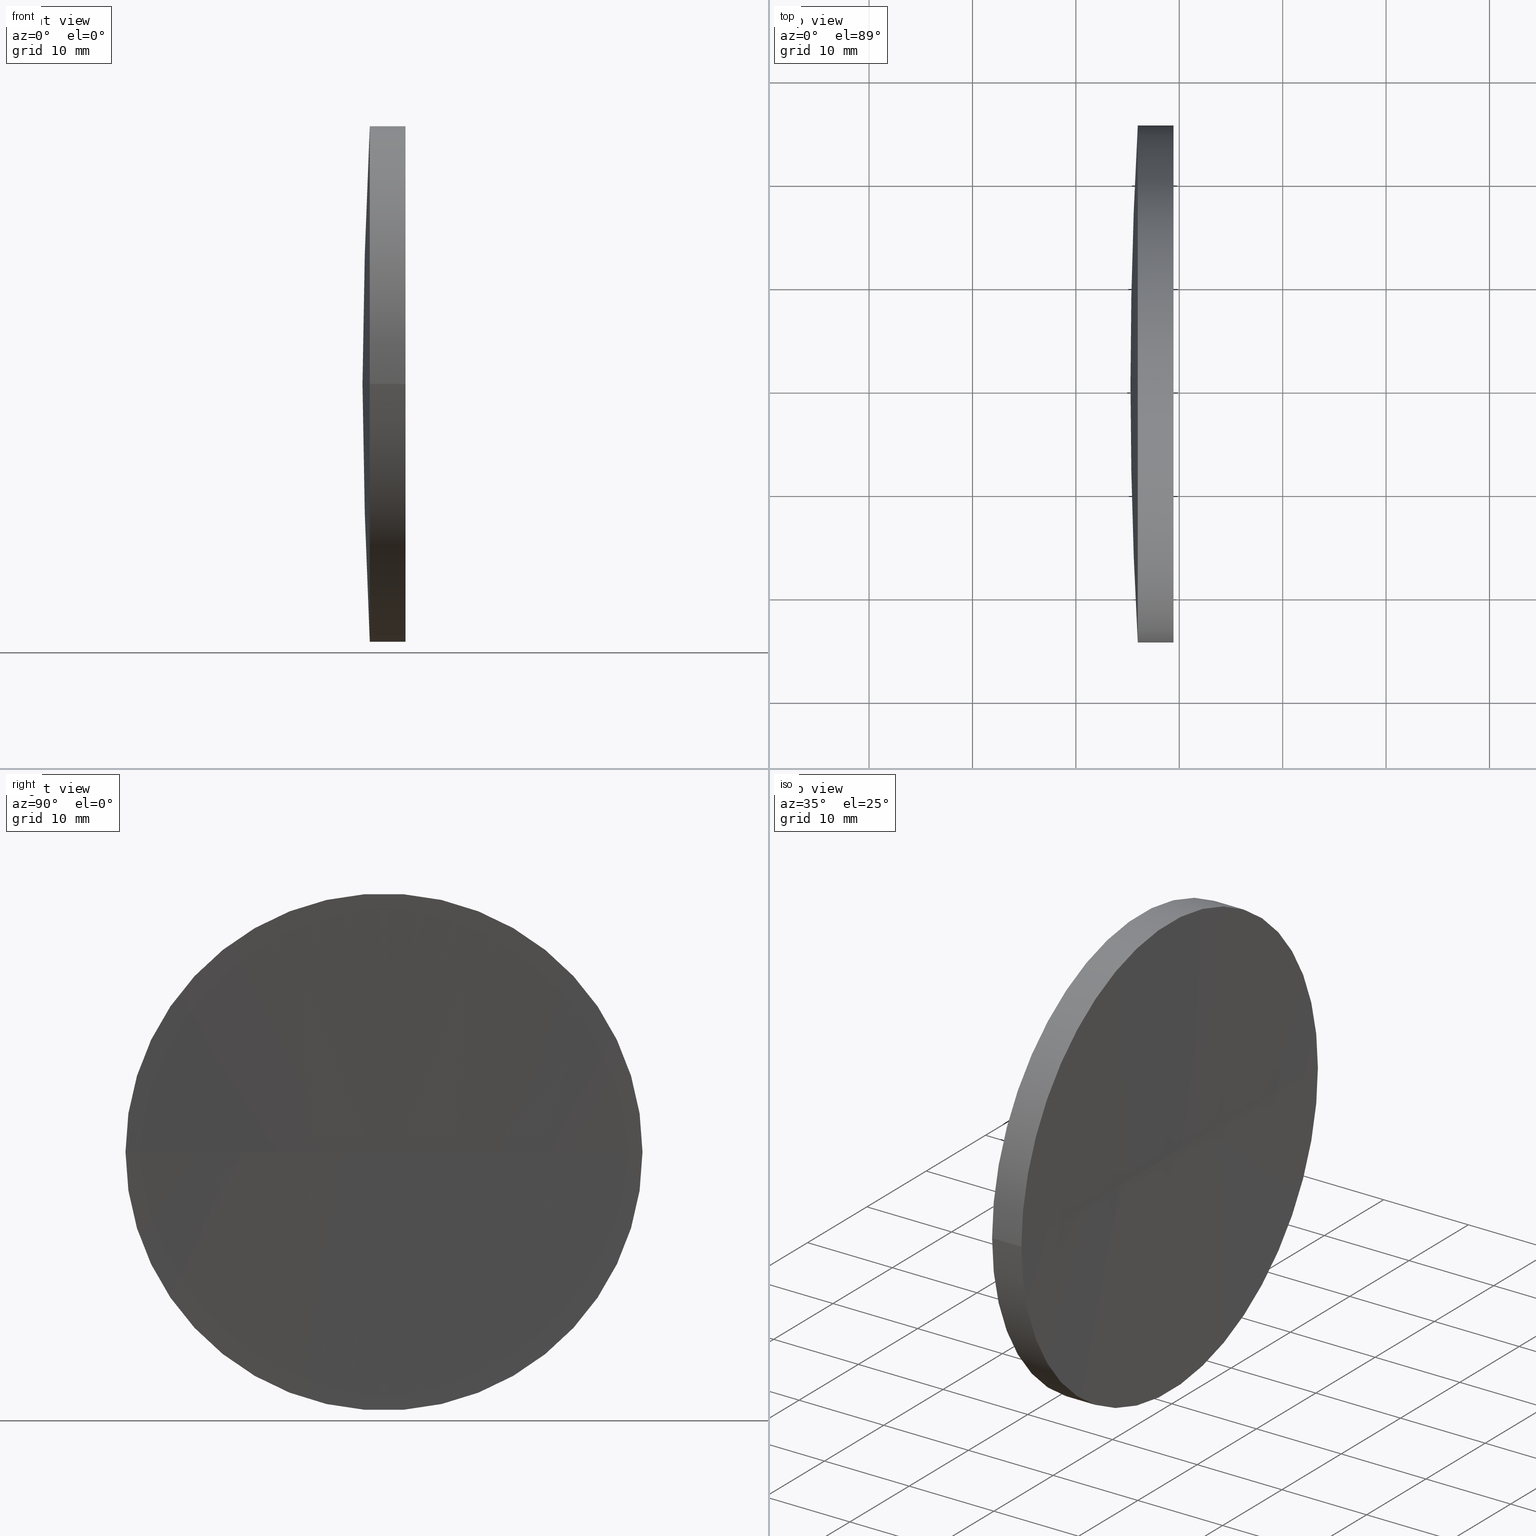
[diagram: canonical four-view strip — front | top / right | iso, engineering-drawing reading convention]
A machine part, canonical four-view strip (front | top / right | iso — engineering-drawing reading convention). The complete STEP part file that produces these views, byte-faithful:
ISO-10303-21;
HEADER;
FILE_DESCRIPTION (( 'STEP AP214' ),
    '1' );
FILE_NAME ('150024.STEP',
    '2019-07-05T02:07:49',
    ( '' ),
    ( '' ),
    'SwSTEP 2.0',
    'SolidWorks 2016',
    '' );
FILE_SCHEMA (( 'AUTOMOTIVE_DESIGN' ));
ENDSEC;

DATA;
#1 = DIRECTION ( 'NONE',  ( -1.000000000000000000, -6.937607244762875000E-016, -0.0000000000000000000 ) ) ;
#2 = PRODUCT_RELATED_PRODUCT_CATEGORY ( 'part', '', ( #140 ) ) ;
#3 = STYLED_ITEM ( 'NONE', ( #26 ), #61 ) ;
#4 =( NAMED_UNIT ( * ) SI_UNIT ( $, .STERADIAN. ) SOLID_ANGLE_UNIT ( ) );
#5 = AXIS2_PLACEMENT_3D ( 'NONE', #11, #85, #116 ) ;
#6 = UNCERTAINTY_MEASURE_WITH_UNIT (LENGTH_MEASURE( 1.000000000000000100E-005 ), #135, 'distance_accuracy_value', 'NONE');
#7 = ADVANCED_FACE ( 'NONE', ( #70 ), #187, .T. ) ;
#8 = CARTESIAN_POINT ( 'NONE',  ( 231.8889825959263400, 130.4336809418806500, 0.0000000000000000000 ) ) ;
#9 = PRODUCT_DEFINITION_CONTEXT ( 'detailed design', #65, 'design' ) ;
#10 = DIRECTION ( 'NONE',  ( -1.000000000000000000, -6.937607244762875000E-016, -0.0000000000000000000 ) ) ;
#11 = CARTESIAN_POINT ( 'NONE',  ( 688.7821311214902400, 130.4336809418806500, 0.0000000000000000000 ) ) ;
#12 = UNCERTAINTY_MEASURE_WITH_UNIT (LENGTH_MEASURE( 1.000000000000000100E-005 ), #146, 'distance_accuracy_value', 'NONE');
#13 = AXIS2_PLACEMENT_3D ( 'NONE', #8, #28, #136 ) ;
#14 = CARTESIAN_POINT ( 'NONE',  ( 688.7821311214902400, 130.4336809418806500, 0.0000000000000000000 ) ) ;
#15 = DIRECTION ( 'NONE',  ( 1.000000000000000000, 0.0000000000000000000, 0.0000000000000000000 ) ) ;
#16 = FACE_OUTER_BOUND ( 'NONE', #111, .T. ) ;
#17 = APPLICATION_CONTEXT ( 'automotive_design' ) ;
#18 = ORIENTED_EDGE ( 'NONE', *, *, #54, .T. ) ;
#19 = SHAPE_DEFINITION_REPRESENTATION ( #121, #27 ) ;
#20 = ORIENTED_EDGE ( 'NONE', *, *, #87, .F. ) ;
#21 =( GEOMETRIC_REPRESENTATION_CONTEXT ( 3 ) GLOBAL_UNCERTAINTY_ASSIGNED_CONTEXT ( ( #12 ) ) GLOBAL_UNIT_ASSIGNED_CONTEXT ( ( #146, #138, #89 ) ) REPRESENTATION_CONTEXT ( 'NONE', 'WORKASPACE' ) );
#22 = AXIS2_PLACEMENT_3D ( 'NONE', #110, #43, #41 ) ;
#23 = EDGE_CURVE ( 'NONE', #80, #93, #188, .T. ) ;
#24 = ORIENTED_EDGE ( 'NONE', *, *, #97, .T. ) ;
#25 = PRESENTATION_LAYER_ASSIGNMENT (  '', '', ( #152 ) ) ;
#26 = PRESENTATION_STYLE_ASSIGNMENT (( #177 ) ) ;
#27 = ADVANCED_BREP_SHAPE_REPRESENTATION ( '150024', ( #61, #139 ), #56 ) ;
#28 = DIRECTION ( 'NONE',  ( -1.000000000000000000, -6.937607244762875000E-016, -0.0000000000000000000 ) ) ;
#29 = UNCERTAINTY_MEASURE_WITH_UNIT (LENGTH_MEASURE( 1.000000000000000100E-005 ), #52, 'distance_accuracy_value', 'NONE');
#30 = CARTESIAN_POINT ( 'NONE',  ( 231.8889825959263400, 130.4336809418806500, 0.0000000000000000000 ) ) ;
#31 = ORIENTED_EDGE ( 'NONE', *, *, #125, .F. ) ;
#32 = CARTESIAN_POINT ( 'NONE',  ( 688.7821311214902400, 130.4336809418806500, 0.0000000000000000000 ) ) ;
#33 = EDGE_LOOP ( 'NONE', ( #24, #64, #192, #179 ) ) ;
#34 = FILL_AREA_STYLE_COLOUR ( '', #120 ) ;
#35 = AXIS2_PLACEMENT_3D ( 'NONE', #98, #46, #154 ) ;
#36 = DIRECTION ( 'NONE',  ( -7.401486830834377300E-016, 1.000000000000000000, 0.0000000000000000000 ) ) ;
#37 = COLOUR_RGB ( '',1.000000000000000000, 1.000000000000000000, 1.000000000000000000 ) ;
#38 = CARTESIAN_POINT ( 'NONE',  ( 249.1821311214903600, 130.4336809418746600, 0.0000000000000000000 ) ) ;
#39 = PRODUCT_DEFINITION_FORMATION_WITH_SPECIFIED_SOURCE ( '�κ�', '', #140, .NOT_KNOWN. ) ;
#40 = MECHANICAL_DESIGN_GEOMETRIC_PRESENTATION_REPRESENTATION (  '', ( #3 ), #45 ) ;
#41 = DIRECTION ( 'NONE',  ( -7.509964089910868700E-016, 1.000000000000000000, 0.0000000000000000000 ) ) ;
#42 = ORIENTED_EDGE ( 'NONE', *, *, #114, .F. ) ;
#43 = DIRECTION ( 'NONE',  ( -0.0000000000000000000, 0.0000000000000000000, -1.000000000000000000 ) ) ;
#44 = MECHANICAL_DESIGN_GEOMETRIC_PRESENTATION_REPRESENTATION (  '', ( #152 ), #21 ) ;
#45 =( GEOMETRIC_REPRESENTATION_CONTEXT ( 3 ) GLOBAL_UNCERTAINTY_ASSIGNED_CONTEXT ( ( #6 ) ) GLOBAL_UNIT_ASSIGNED_CONTEXT ( ( #135, #48, #84 ) ) REPRESENTATION_CONTEXT ( 'NONE', 'WORKASPACE' ) );
#46 = DIRECTION ( 'NONE',  ( -8.496118506040342700E-032, 1.224646799147353200E-016, -1.000000000000000000 ) ) ;
#47 = FACE_OUTER_BOUND ( 'NONE', #33, .T. ) ;
#48 =( NAMED_UNIT ( * ) PLANE_ANGLE_UNIT ( ) SI_UNIT ( $, .RADIAN. ) );
#49 = DIRECTION ( 'NONE',  ( 1.110223024625153800E-015, -1.000000000000000000, 0.0000000000000000000 ) ) ;
#50 = AXIS2_PLACEMENT_3D ( 'NONE', #189, #95, #74 ) ;
#51 = ORIENTED_EDGE ( 'NONE', *, *, #87, .T. ) ;
#52 =( LENGTH_UNIT ( ) NAMED_UNIT ( * ) SI_UNIT ( .MILLI., .METRE. ) );
#53 = DIRECTION ( 'NONE',  ( -1.000000000000000000, -6.937607244762875000E-016, -0.0000000000000000000 ) ) ;
#54 = EDGE_CURVE ( 'NONE', #149, #137, #159, .T. ) ;
#55 = EDGE_LOOP ( 'NONE', ( #42, #162, #173, #20 ) ) ;
#56 =( GEOMETRIC_REPRESENTATION_CONTEXT ( 3 ) GLOBAL_UNCERTAINTY_ASSIGNED_CONTEXT ( ( #29 ) ) GLOBAL_UNIT_ASSIGNED_CONTEXT ( ( #52, #106, #4 ) ) REPRESENTATION_CONTEXT ( 'NONE', 'WORKASPACE' ) );
#57 = CARTESIAN_POINT ( 'NONE',  ( 245.2821311214903200, 130.4336809418803700, 0.0000000000000000000 ) ) ;
#58 = CARTESIAN_POINT ( 'NONE',  ( 231.8889825959263600, 105.4336809418806400, 0.0000000000000000000 ) ) ;
#59 = ORIENTED_EDGE ( 'NONE', *, *, #109, .F. ) ;
#60 = SURFACE_SIDE_STYLE ('',( #151 ) ) ;
#61 = MANIFOLD_SOLID_BREP ( '��ת1', #77 ) ;
#62 = CIRCLE ( 'NONE', #83, 24.99999999999992500 ) ;
#63 = SURFACE_STYLE_USAGE ( .BOTH. , #185 ) ;
#64 = ORIENTED_EDGE ( 'NONE', *, *, #114, .T. ) ;
#65 = APPLICATION_CONTEXT ( 'automotive_design' ) ;
#66 = ORIENTED_EDGE ( 'NONE', *, *, #109, .T. ) ;
#67 = AXIS2_PLACEMENT_3D ( 'NONE', #14, #118, #142 ) ;
#68 = CARTESIAN_POINT ( 'NONE',  ( 245.9873140786527900, 130.4336809418806500, 0.0000000000000000000 ) ) ;
#69 = ORIENTED_EDGE ( 'NONE', *, *, #23, .F. ) ;
#70 = FACE_OUTER_BOUND ( 'NONE', #104, .T. ) ;
#71 = ADVANCED_FACE ( 'NONE', ( #155 ), #134, .F. ) ;
#72 = DIRECTION ( 'NONE',  ( -8.496118506040342700E-032, 1.224646799147353200E-016, -1.000000000000000000 ) ) ;
#73 = CYLINDRICAL_SURFACE ( 'NONE', #13, 25.00000000000000700 ) ;
#74 = DIRECTION ( 'NONE',  ( 1.110223024625153800E-015, -1.000000000000000000, 0.0000000000000000000 ) ) ;
#75 = CARTESIAN_POINT ( 'NONE',  ( 1449.182131121490300, 130.4336809418753900, 0.0000000000000000000 ) ) ;
#76 = DIRECTION ( 'NONE',  ( -1.000000000000000000, -6.937607244762875000E-016, -0.0000000000000000000 ) ) ;
#77 = CLOSED_SHELL ( 'NONE', ( #7, #94, #153, #71, #130, #174 ) ) ;
#78 = PRODUCT_CONTEXT ( 'NONE', #17, 'mechanical' ) ;
#79 = APPLICATION_PROTOCOL_DEFINITION ( 'draft international standard', 'automotive_design', 1998, #65 ) ;
#80 = VERTEX_POINT ( 'NONE', #133 ) ;
#81 = PRESENTATION_STYLE_ASSIGNMENT (( #63 ) ) ;
#82 = EDGE_CURVE ( 'NONE', #186, #149, #148, .T. ) ;
#83 = AXIS2_PLACEMENT_3D ( 'NONE', #68, #53, #145 ) ;
#84 =( NAMED_UNIT ( * ) SI_UNIT ( $, .STERADIAN. ) SOLID_ANGLE_UNIT ( ) );
#85 = DIRECTION ( 'NONE',  ( -0.0000000000000000000, 0.0000000000000000000, 1.000000000000000000 ) ) ;
#86 = CARTESIAN_POINT ( 'NONE',  ( 0.0000000000000000000, 0.0000000000000000000, 0.0000000000000000000 ) ) ;
#87 = EDGE_CURVE ( 'NONE', #183, #80, #190, .T. ) ;
#88 = ORIENTED_EDGE ( 'NONE', *, *, #125, .T. ) ;
#89 =( NAMED_UNIT ( * ) SI_UNIT ( $, .STERADIAN. ) SOLID_ANGLE_UNIT ( ) );
#90 = SURFACE_STYLE_FILL_AREA ( #126 ) ;
#91 = CARTESIAN_POINT ( 'NONE',  ( 245.9873140786527600, 155.4336809418806000, 3.061616997868379500E-015 ) ) ;
#92 = FACE_OUTER_BOUND ( 'NONE', #150, .T. ) ;
#93 = VERTEX_POINT ( 'NONE', #57 ) ;
#94 = ADVANCED_FACE ( 'NONE', ( #47 ), #73, .T. ) ;
#95 = DIRECTION ( 'NONE',  ( -1.000000000000000000, -6.937607244762875000E-016, -0.0000000000000000000 ) ) ;
#96 = SPHERICAL_SURFACE ( 'NONE', #67, 443.4999999999998900 ) ;
#97 = EDGE_CURVE ( 'NONE', #149, #186, #101, .T. ) ;
#98 = CARTESIAN_POINT ( 'NONE',  ( 1449.182131121490300, 130.4336809418753900, 0.0000000000000000000 ) ) ;
#99 = EDGE_LOOP ( 'NONE', ( #144, #105, #88 ) ) ;
#100 = AXIS2_PLACEMENT_3D ( 'NONE', #115, #191, #168 ) ;
#101 = CIRCLE ( 'NONE', #50, 25.00000000000006400 ) ;
#102 = APPLICATION_PROTOCOL_DEFINITION ( 'draft international standard', 'automotive_design', 1998, #17 ) ;
#103 = CARTESIAN_POINT ( 'NONE',  ( 1449.182131121490300, 130.4336809418753900, 0.0000000000000000000 ) ) ;
#104 = EDGE_LOOP ( 'NONE', ( #51, #119, #59 ) ) ;
#105 = ORIENTED_EDGE ( 'NONE', *, *, #82, .F. ) ;
#106 =( NAMED_UNIT ( * ) PLANE_ANGLE_UNIT ( ) SI_UNIT ( $, .RADIAN. ) );
#107 = VECTOR ( 'NONE', #10, 1000.000000000000000 ) ;
#108 = ORIENTED_EDGE ( 'NONE', *, *, #176, .T. ) ;
#109 = EDGE_CURVE ( 'NONE', #183, #93, #184, .T. ) ;
#110 = CARTESIAN_POINT ( 'NONE',  ( 688.7821311214902400, 130.4336809418806500, 0.0000000000000000000 ) ) ;
#111 = EDGE_LOOP ( 'NONE', ( #69, #108, #66 ) ) ;
#112 = PRESENTATION_LAYER_ASSIGNMENT (  '', '', ( #3 ) ) ;
#113 = DIRECTION ( 'NONE',  ( -1.000000000000000000, -6.937607244762875000E-016, -0.0000000000000000000 ) ) ;
#114 = EDGE_CURVE ( 'NONE', #186, #183, #129, .T. ) ;
#115 = CARTESIAN_POINT ( 'NONE',  ( 245.9873140786527900, 130.4336809418806500, 0.0000000000000000000 ) ) ;
#116 = DIRECTION ( 'NONE',  ( 1.000000000000000000, 0.0000000000000000000, 0.0000000000000000000 ) ) ;
#117 = FILL_AREA_STYLE ('',( #158 ) ) ;
#118 = DIRECTION ( 'NONE',  ( -0.0000000000000000000, 0.0000000000000000000, -1.000000000000000000 ) ) ;
#119 = ORIENTED_EDGE ( 'NONE', *, *, #23, .T. ) ;
#120 = COLOUR_RGB ( '',1.000000000000000000, 1.000000000000000000, 1.000000000000000000 ) ;
#121 = PRODUCT_DEFINITION_SHAPE ( 'NONE', 'NONE',  #157 ) ;
#122 = CYLINDRICAL_SURFACE ( 'NONE', #143, 25.00000000000000700 ) ;
#123 = EDGE_CURVE ( 'NONE', #149, #80, #161, .T. ) ;
#124 = CARTESIAN_POINT ( 'NONE',  ( 249.4425760513079200, 155.4336809418852900, 0.0000000000000000000 ) ) ;
#125 = EDGE_CURVE ( 'NONE', #186, #137, #178, .T. ) ;
#126 = FILL_AREA_STYLE ('',( #34 ) ) ;
#127 = CARTESIAN_POINT ( 'NONE',  ( 1449.182131121490300, 130.4336809418753900, 0.0000000000000000000 ) ) ;
#128 = AXIS2_PLACEMENT_3D ( 'NONE', #167, #113, #49 ) ;
#129 = LINE ( 'NONE', #131, #107 ) ;
#130 = ADVANCED_FACE ( 'NONE', ( #172 ), #122, .T. ) ;
#131 = CARTESIAN_POINT ( 'NONE',  ( 231.8889825959263100, 155.4336809418806500, 3.061616997868383800E-015 ) ) ;
#132 = AXIS2_PLACEMENT_3D ( 'NONE', #32, #72, #181 ) ;
#133 = CARTESIAN_POINT ( 'NONE',  ( 245.9873140786528200, 105.4336809418807200, 0.0000000000000000000 ) ) ;
#134 = SPHERICAL_SURFACE ( 'NONE', #147, 1200.000000000000000 ) ;
#135 =( LENGTH_UNIT ( ) NAMED_UNIT ( * ) SI_UNIT ( .MILLI., .METRE. ) );
#136 = DIRECTION ( 'NONE',  ( 1.110223024625156100E-015, -1.000000000000000000, 0.0000000000000000000 ) ) ;
#137 = VERTEX_POINT ( 'NONE', #38 ) ;
#138 =( NAMED_UNIT ( * ) PLANE_ANGLE_UNIT ( ) SI_UNIT ( $, .RADIAN. ) );
#139 = AXIS2_PLACEMENT_3D ( 'NONE', #86, #170, #163 ) ;
#140 = PRODUCT ( '150024', '150024', '', ( #78 ) ) ;
#141 = SPHERICAL_SURFACE ( 'NONE', #165, 1200.000000000000000 ) ;
#142 = DIRECTION ( 'NONE',  ( -7.509964089910868700E-016, 1.000000000000000000, 0.0000000000000000000 ) ) ;
#143 = AXIS2_PLACEMENT_3D ( 'NONE', #30, #1, #171 ) ;
#144 = ORIENTED_EDGE ( 'NONE', *, *, #54, .F. ) ;
#145 = DIRECTION ( 'NONE',  ( 1.110223024625159900E-015, -1.000000000000000000, 0.0000000000000000000 ) ) ;
#146 =( LENGTH_UNIT ( ) NAMED_UNIT ( * ) SI_UNIT ( .MILLI., .METRE. ) );
#147 = AXIS2_PLACEMENT_3D ( 'NONE', #75, #156, #180 ) ;
#148 = CIRCLE ( 'NONE', #128, 25.00000000000006400 ) ;
#149 = VERTEX_POINT ( 'NONE', #169 ) ;
#150 = EDGE_LOOP ( 'NONE', ( #182, #18, #31 ) ) ;
#151 = SURFACE_STYLE_FILL_AREA ( #117 ) ;
#152 = STYLED_ITEM ( 'NONE', ( #81 ), #27 ) ;
#153 = ADVANCED_FACE ( 'NONE', ( #92 ), #141, .F. ) ;
#154 = DIRECTION ( 'NONE',  ( 0.0000000000000000000, 1.000000000000000000, 1.224646799147353200E-016 ) ) ;
#155 = FACE_OUTER_BOUND ( 'NONE', #99, .T. ) ;
#156 = DIRECTION ( 'NONE',  ( 0.0000000000000000000, 0.0000000000000000000, -1.000000000000000000 ) ) ;
#157 = PRODUCT_DEFINITION ( 'δ֪', '', #39, #9 ) ;
#158 = FILL_AREA_STYLE_COLOUR ( '', #37 ) ;
#159 = CIRCLE ( 'NONE', #35, 1200.000000000000000 ) ;
#160 = DIRECTION ( 'NONE',  ( 0.0000000000000000000, -0.0000000000000000000, 1.000000000000000000 ) ) ;
#161 = LINE ( 'NONE', #58, #166 ) ;
#162 = ORIENTED_EDGE ( 'NONE', *, *, #82, .T. ) ;
#163 = DIRECTION ( 'NONE',  ( 1.000000000000000000, 0.0000000000000000000, 0.0000000000000000000 ) ) ;
#164 = DIRECTION ( 'NONE',  ( 0.0000000000000000000, 0.0000000000000000000, -1.000000000000000000 ) ) ;
#165 = AXIS2_PLACEMENT_3D ( 'NONE', #103, #164, #36 ) ;
#166 = VECTOR ( 'NONE', #76, 1000.000000000000000 ) ;
#167 = CARTESIAN_POINT ( 'NONE',  ( 249.4425760513077300, 130.4336809418806500, 0.0000000000000000000 ) ) ;
#168 = DIRECTION ( 'NONE',  ( 1.110223024625159900E-015, -1.000000000000000000, 0.0000000000000000000 ) ) ;
#169 = CARTESIAN_POINT ( 'NONE',  ( 249.4425760513079500, 105.4336809418699500, -3.061616997868951400E-015 ) ) ;
#170 = DIRECTION ( 'NONE',  ( 0.0000000000000000000, 0.0000000000000000000, 1.000000000000000000 ) ) ;
#171 = DIRECTION ( 'NONE',  ( 1.110223024625156100E-015, -1.000000000000000000, 0.0000000000000000000 ) ) ;
#172 = FACE_OUTER_BOUND ( 'NONE', #55, .T. ) ;
#173 = ORIENTED_EDGE ( 'NONE', *, *, #123, .T. ) ;
#174 = ADVANCED_FACE ( 'NONE', ( #16 ), #96, .T. ) ;
#175 = AXIS2_PLACEMENT_3D ( 'NONE', #127, #160, #15 ) ;
#176 = EDGE_CURVE ( 'NONE', #80, #183, #62, .T. ) ;
#177 = SURFACE_STYLE_USAGE ( .BOTH. , #60 ) ;
#178 = CIRCLE ( 'NONE', #175, 1200.000000000000000 ) ;
#179 = ORIENTED_EDGE ( 'NONE', *, *, #123, .F. ) ;
#180 = DIRECTION ( 'NONE',  ( -7.401486830834377300E-016, 1.000000000000000000, 0.0000000000000000000 ) ) ;
#181 = DIRECTION ( 'NONE',  ( 0.0000000000000000000, 1.000000000000000000, 1.224646799147353200E-016 ) ) ;
#182 = ORIENTED_EDGE ( 'NONE', *, *, #97, .F. ) ;
#183 = VERTEX_POINT ( 'NONE', #91 ) ;
#184 = CIRCLE ( 'NONE', #5, 443.4999999999998900 ) ;
#185 = SURFACE_SIDE_STYLE ('',( #90 ) ) ;
#186 = VERTEX_POINT ( 'NONE', #124 ) ;
#187 = SPHERICAL_SURFACE ( 'NONE', #22, 443.4999999999998900 ) ;
#188 = CIRCLE ( 'NONE', #132, 443.4999999999998900 ) ;
#189 = CARTESIAN_POINT ( 'NONE',  ( 249.4425760513077300, 130.4336809418806500, 0.0000000000000000000 ) ) ;
#190 = CIRCLE ( 'NONE', #100, 24.99999999999992500 ) ;
#191 = DIRECTION ( 'NONE',  ( -1.000000000000000000, -6.937607244762875000E-016, -0.0000000000000000000 ) ) ;
#192 = ORIENTED_EDGE ( 'NONE', *, *, #176, .F. ) ;
ENDSEC;
END-ISO-10303-21;
